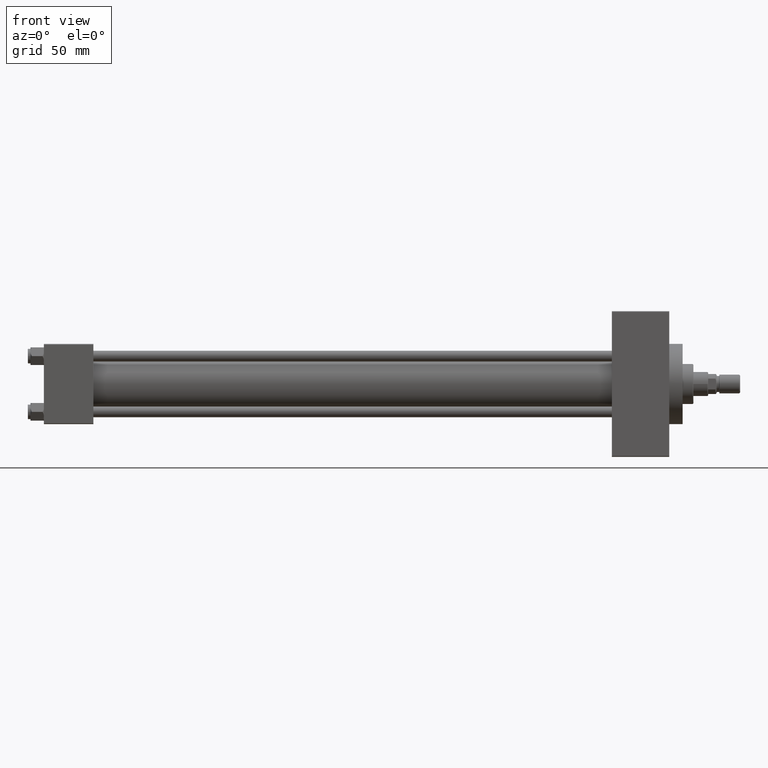
[diagram: clean part render]
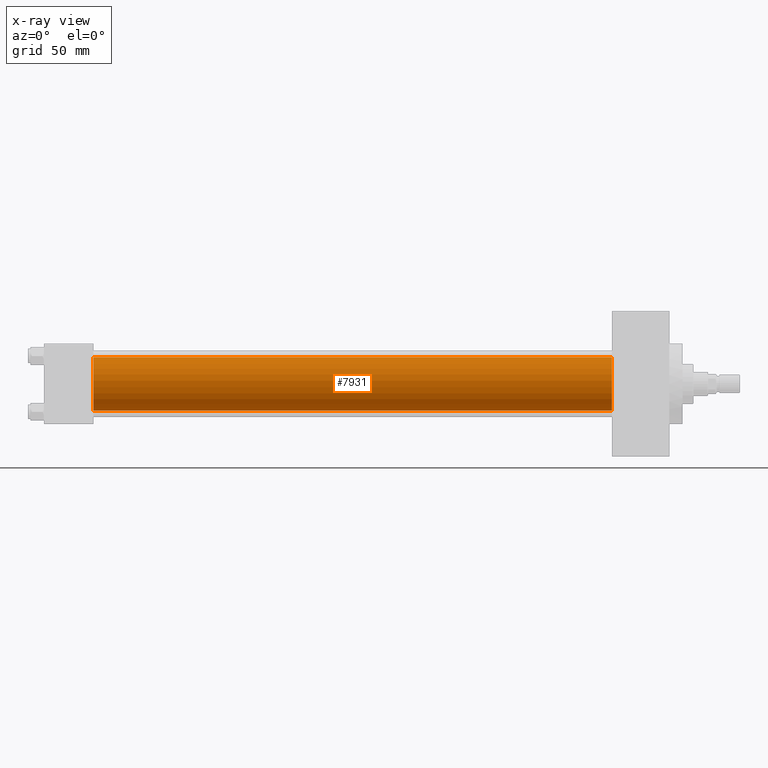
[diagram: x-ray — body ghosted, one internal face saturated and labeled with its STEP entity id]
A machine part, front view, then the same camera in x-ray: the body is ghosted and one INTERNAL B-rep face — a face not visible from any outside direction — is saturated and labeled: STEP entity #7931.
In plain terms, the highlighted cylindrical surface (edge-blend (fillet) strip) has radius 20 mm, axis along (-1, -0, -0).
Its self-contained STEP definition (entity closure, byte-faithful):
#344 = CARTESIAN_POINT ( 'NONE',  ( 37.00000000000000000, -1.527916156705046464E-16, -20.00000000000000000 ) ) ;
#731 = EDGE_CURVE ( 'NONE', #7370, #4753, #7244, .T. ) ;
#2601 = DIRECTION ( 'NONE',  ( 1.000000000000000000, 0.000000000000000000, 0.000000000000000000 ) ) ;
#2606 = VERTEX_POINT ( 'NONE', #45594 ) ;
#4108 = CARTESIAN_POINT ( 'NONE',  ( 425.0000000000000000, -2.602085213965210642E-15, 20.00000000000000000 ) ) ;
#4321 = VECTOR ( 'NONE', #35145, 1000.000000000000000 ) ;
#4327 = VERTEX_POINT ( 'NONE', #344 ) ;
#4392 = EDGE_LOOP ( 'NONE', ( #26153, #34471, #45915, #19795 ) ) ;
#4753 = VERTEX_POINT ( 'NONE', #35045 ) ;
#7244 = CIRCLE ( 'NONE', #31134, 20.00000000000000000 ) ;
#7370 = VERTEX_POINT ( 'NONE', #19330 ) ;
#7795 = DIRECTION ( 'NONE',  ( -1.000000000000000000, -0.000000000000000000, -0.000000000000000000 ) ) ;
#7931 = ADVANCED_FACE ( 'NONE', ( #36263 ), #36506, .F. ) ;
#8221 = DIRECTION ( 'NONE',  ( -1.000000000000000000, -0.000000000000000000, -0.000000000000000000 ) ) ;
#11304 = CARTESIAN_POINT ( 'NONE',  ( 37.00000000000000000, -2.602085213965210642E-15, 0.000000000000000000 ) ) ;
#11723 = EDGE_CURVE ( 'NONE', #7370, #2606, #29691, .T. ) ;
#13457 = CARTESIAN_POINT ( 'NONE',  ( 425.0000000000000000, -2.602085213965210642E-15, 0.000000000000000000 ) ) ;
#17308 = DIRECTION ( 'NONE',  ( 0.000000000000000000, 0.000000000000000000, -1.000000000000000000 ) ) ;
#17474 = AXIS2_PLACEMENT_3D ( 'NONE', #22261, #7795, #22493 ) ;
#19330 = CARTESIAN_POINT ( 'NONE',  ( 425.0000000000000000, -2.602085213965210642E-15, 20.00000000000000000 ) ) ;
#19795 = ORIENTED_EDGE ( 'NONE', *, *, #11723, .F. ) ;
#22261 = CARTESIAN_POINT ( 'NONE',  ( 425.0000000000000000, -2.602085213965210642E-15, 0.000000000000000000 ) ) ;
#22493 = DIRECTION ( 'NONE',  ( 0.000000000000000000, 0.000000000000000000, 1.000000000000000000 ) ) ;
#25295 = DIRECTION ( 'NONE',  ( 1.000000000000000000, 0.000000000000000000, 0.000000000000000000 ) ) ;
#25449 = VECTOR ( 'NONE', #8221, 1000.000000000000000 ) ;
#26153 = ORIENTED_EDGE ( 'NONE', *, *, #731, .T. ) ;
#26716 = EDGE_CURVE ( 'NONE', #4753, #4327, #45994, .T. ) ;
#27603 = EDGE_CURVE ( 'NONE', #2606, #4327, #45908, .T. ) ;
#27658 = CARTESIAN_POINT ( 'NONE',  ( 425.0000000000000000, -1.527916156705046464E-16, -20.00000000000000000 ) ) ;
#29691 = LINE ( 'NONE', #4108, #25449 ) ;
#31134 = AXIS2_PLACEMENT_3D ( 'NONE', #13457, #2601, #17308 ) ;
#34471 = ORIENTED_EDGE ( 'NONE', *, *, #26716, .T. ) ;
#35045 = CARTESIAN_POINT ( 'NONE',  ( 425.0000000000000000, -1.527916156705046464E-16, -20.00000000000000000 ) ) ;
#35145 = DIRECTION ( 'NONE',  ( -1.000000000000000000, -0.000000000000000000, -0.000000000000000000 ) ) ;
#36263 = FACE_OUTER_BOUND ( 'NONE', #4392, .T. ) ;
#36506 = CYLINDRICAL_SURFACE ( 'NONE', #17474, 20.00000000000000000 ) ;
#37417 = AXIS2_PLACEMENT_3D ( 'NONE', #11304, #25295, #40009 ) ;
#40009 = DIRECTION ( 'NONE',  ( 0.000000000000000000, 0.000000000000000000, -1.000000000000000000 ) ) ;
#45594 = CARTESIAN_POINT ( 'NONE',  ( 37.00000000000000000, -2.602085213965210642E-15, 20.00000000000000000 ) ) ;
#45908 = CIRCLE ( 'NONE', #37417, 20.00000000000000000 ) ;
#45915 = ORIENTED_EDGE ( 'NONE', *, *, #27603, .F. ) ;
#45994 = LINE ( 'NONE', #27658, #4321 ) ;